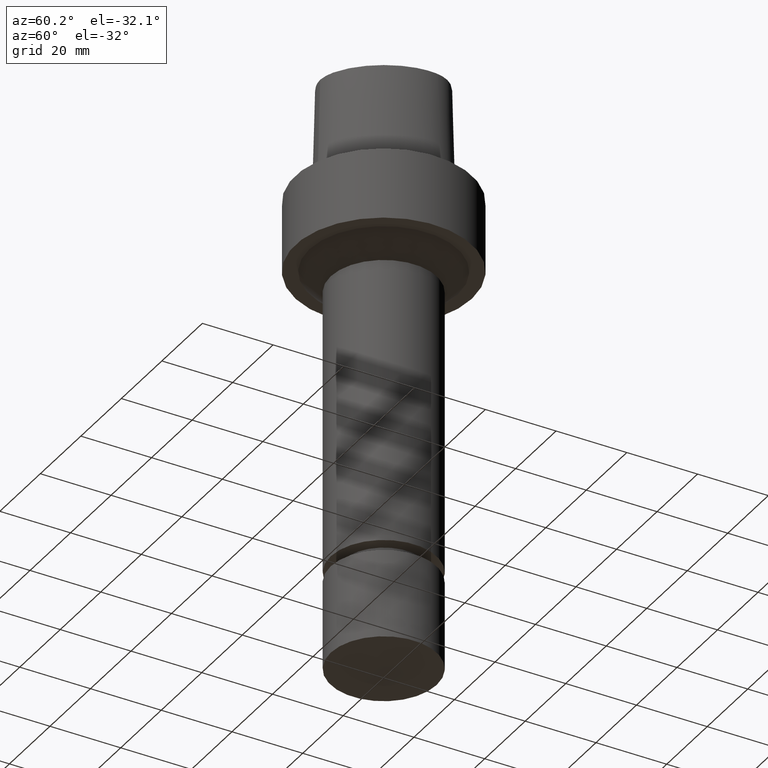
[diagram: clean part render]
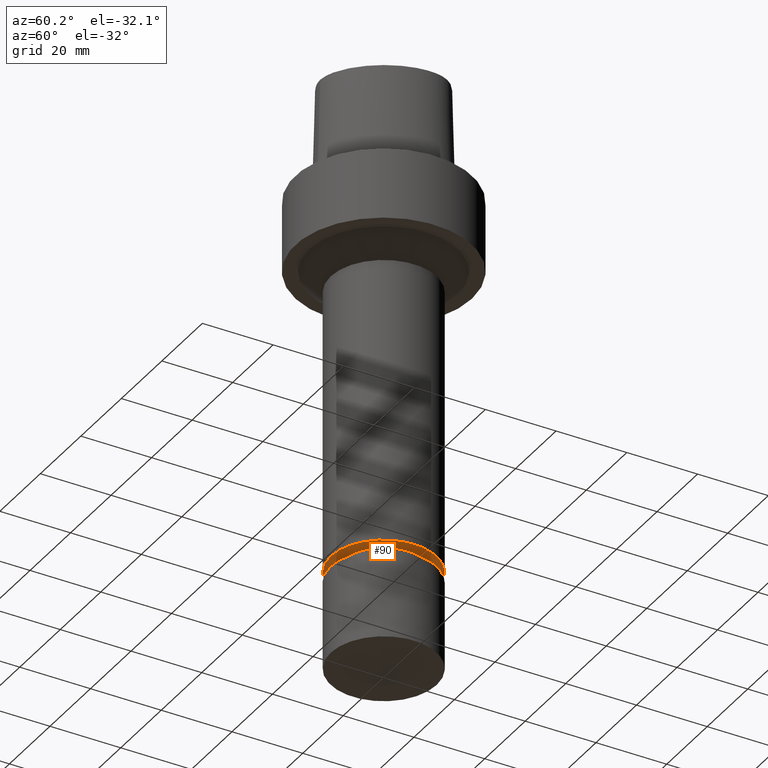
[diagram: same view with one face highlighted and labeled with its STEP entity id]
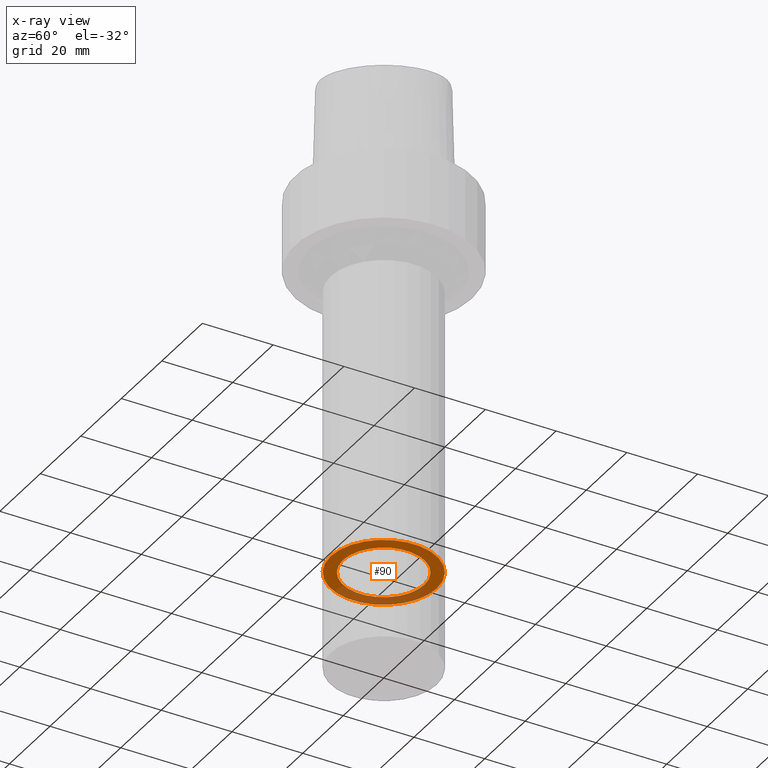
[diagram: x-ray of the same camera — body ghosted, the highlighted face saturated]
A machine part, auxiliary view. The second image highlights one B-rep face of the part: STEP entity #90.
The next image is the same camera in x-ray: the body ghosted, the highlighted face saturated — about 32% of this face is hidden behind the body in this view.
In plain terms, the highlighted planar face has unit normal (0, 0, -1).
Its self-contained STEP definition (entity closure, byte-faithful):
#78=EDGE_CURVE('Unnamed[1]',#187,#187,#188,.T.);
#90=ADVANCED_FACE('Unnamed[1]',(#204,#205),#206,.T.);
#127=EDGE_CURVE('Unnamed[1]',#260,#260,#261,.T.);
#187=VERTEX_POINT('',#327);
#188=CIRCLE('',#328,15.0000000000003);
#204=FACE_BOUND('',#875,.T.);
#205=FACE_OUTER_BOUND('',#876,.T.);
#206=PLANE('',#877);
#260=VERTEX_POINT('',#948);
#261=CIRCLE('',#949,11.4999999999907);
#327=CARTESIAN_POINT('',(6.55798360943403E-015,15.0000000000003,-107.099999999999));
#328=AXIS2_PLACEMENT_3D('',#1009,#1010,#1011);
#875=EDGE_LOOP('',(#1021));
#876=EDGE_LOOP('',(#1022));
#877=AXIS2_PLACEMENT_3D('',#1023,#1024,#1025);
#948=CARTESIAN_POINT('',(6.55798360943408E-015,11.4999999999907,-107.1));
#949=AXIS2_PLACEMENT_3D('',#1080,#1081,#1082);
#1009=CARTESIAN_POINT('',(6.55798360943403E-015,1.31159672188681E-014,-107.099999999999));
#1010=DIRECTION('',(6.12323399573677E-017,1.22464679914735E-016,-1.0));
#1011=DIRECTION('',(-1.23259516440783E-032,1.0,1.22464679914735E-016));
#1021=ORIENTED_EDGE('',*,*,#127,.F.);
#1022=ORIENTED_EDGE('',*,*,#78,.T.);
#1023=CARTESIAN_POINT('',(6.55798360943406E-015,13.2499999999955,-107.1));
#1024=DIRECTION('',(6.12323399573677E-017,2.27496140122525E-013,-1.0));
#1025=DIRECTION('',(-1.39349481437022E-029,1.0,2.27496140122525E-013));
#1080=CARTESIAN_POINT('',(6.55798360943408E-015,1.31159672188682E-014,-107.1));
#1081=DIRECTION('',(6.12323399573677E-017,1.22464679914735E-016,-1.0));
#1082=DIRECTION('',(-1.23259516440783E-032,1.0,1.22464679914735E-016));